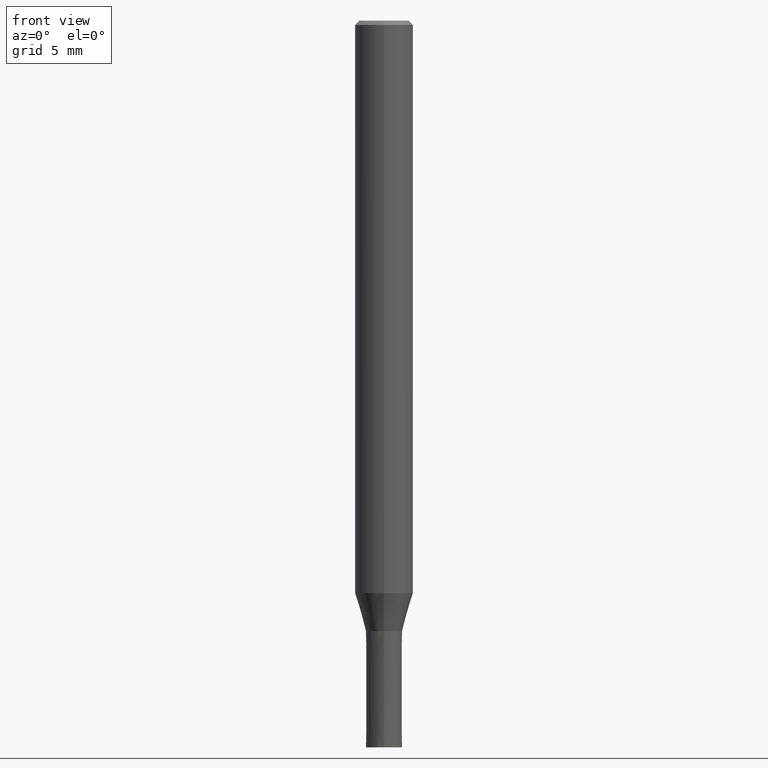
[diagram: clean part render]
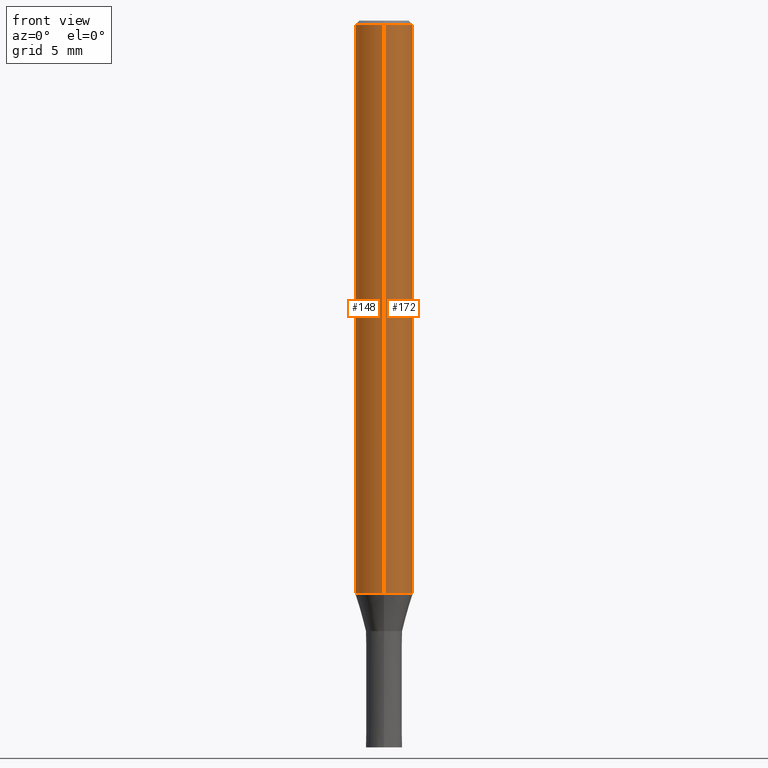
[diagram: same view with one multi-face feature highlighted, each face labeled with its STEP entity id]
A machine part, front view. The highlighted faces form ONE feature: a constant-radius fillet chain: 2 tangent blend faces with common blend radius 2 mm. The faces share edges in the B-rep.
Their STEP definitions:
[1] entity #148 (Cylinder):
#94=VERTEX_POINT('',#215);
#98=VERTEX_POINT('',#219);
#100=EDGE_CURVE('',#134,#94,#221,.T.);
#104=EDGE_CURVE('',#98,#94,#225,.T.);
#134=VERTEX_POINT('',#260);
#140=VERTEX_POINT('',#267);
#148=ADVANCED_FACE('',(#275),#276,.T.);
#154=EDGE_CURVE('',#140,#98,#283,.T.);
#184=EDGE_CURVE('',#134,#140,#319,.T.);
#215=CARTESIAN_POINT('',(0.0,2.0,-39.384));
#219=CARTESIAN_POINT('',(0.0,2.0,-0.299999999999997));
#221=CIRCLE('',#355,2.0);
#225=LINE('',#362,#363);
#260=CARTESIAN_POINT('',(2.44921270764475E-016,-2.0,-39.384));
#267=CARTESIAN_POINT('',(2.44921270764475E-016,-2.0,-0.299999999999997));
#275=FACE_OUTER_BOUND('',#420,.T.);
#276=CYLINDRICAL_SURFACE('',#421,2.0);
#283=CIRCLE('',#431,2.0);
#319=LINE('',#473,#474);
#355=AXIS2_PLACEMENT_3D('',#484,#485,#486);
#362=CARTESIAN_POINT('',(-2.44921270764475E-016,2.0,-19.842));
#363=VECTOR('',#488,1.0);
#420=EDGE_LOOP('',(#548,#549,#550,#551));
#421=AXIS2_PLACEMENT_3D('',#552,#553,#554);
#431=AXIS2_PLACEMENT_3D('',#562,#563,#564);
#473=CARTESIAN_POINT('',(2.44921270764475E-016,-2.0,-19.842));
#474=VECTOR('',#623,1.0);
#484=CARTESIAN_POINT('',(0.0,0.0,-39.384));
#485=DIRECTION('',(0.0,0.0,-1.0));
#486=DIRECTION('',(0.0,1.0,0.0));
#488=DIRECTION('',(0.0,0.0,-1.0));
#548=ORIENTED_EDGE('',*,*,#104,.T.);
#549=ORIENTED_EDGE('',*,*,#100,.F.);
#550=ORIENTED_EDGE('',*,*,#184,.T.);
#551=ORIENTED_EDGE('',*,*,#154,.T.);
#552=CARTESIAN_POINT('',(0.0,0.0,-19.842));
#553=DIRECTION('',(-0.0,-0.0,1.0));
#554=DIRECTION('',(0.0,1.0,0.0));
#562=CARTESIAN_POINT('',(0.0,0.0,-0.299999999999997));
#563=DIRECTION('',(0.0,0.0,-1.0));
#564=DIRECTION('',(0.0,1.0,0.0));
#623=DIRECTION('',(-0.0,-0.0,1.0));
[2] entity #172 (Cylinder):
#94=VERTEX_POINT('',#215);
#96=EDGE_CURVE('',#94,#134,#217,.T.);
#98=VERTEX_POINT('',#219);
#104=EDGE_CURVE('',#98,#94,#225,.T.);
#134=VERTEX_POINT('',#260);
#140=VERTEX_POINT('',#267);
#162=EDGE_CURVE('',#98,#140,#293,.T.);
#172=ADVANCED_FACE('',(#305),#306,.T.);
#184=EDGE_CURVE('',#134,#140,#319,.T.);
#215=CARTESIAN_POINT('',(0.0,2.0,-39.384));
#217=CIRCLE('',#350,2.0);
#219=CARTESIAN_POINT('',(0.0,2.0,-0.299999999999997));
#225=LINE('',#362,#363);
#260=CARTESIAN_POINT('',(2.44921270764475E-016,-2.0,-39.384));
#267=CARTESIAN_POINT('',(2.44921270764475E-016,-2.0,-0.299999999999997));
#293=CIRCLE('',#442,2.0);
#305=FACE_OUTER_BOUND('',#455,.T.);
#306=CYLINDRICAL_SURFACE('',#456,2.0);
#319=LINE('',#473,#474);
#350=AXIS2_PLACEMENT_3D('',#481,#482,#483);
#362=CARTESIAN_POINT('',(-2.44921270764475E-016,2.0,-19.842));
#363=VECTOR('',#488,1.0);
#442=AXIS2_PLACEMENT_3D('',#579,#580,#581);
#455=EDGE_LOOP('',(#602,#603,#604,#605));
#456=AXIS2_PLACEMENT_3D('',#606,#607,#608);
#473=CARTESIAN_POINT('',(2.44921270764475E-016,-2.0,-19.842));
#474=VECTOR('',#623,1.0);
#481=CARTESIAN_POINT('',(0.0,0.0,-39.384));
#482=DIRECTION('',(0.0,0.0,-1.0));
#483=DIRECTION('',(0.0,1.0,0.0));
#488=DIRECTION('',(0.0,0.0,-1.0));
#579=CARTESIAN_POINT('',(0.0,0.0,-0.299999999999997));
#580=DIRECTION('',(0.0,0.0,-1.0));
#581=DIRECTION('',(0.0,1.0,0.0));
#602=ORIENTED_EDGE('',*,*,#104,.F.);
#603=ORIENTED_EDGE('',*,*,#162,.T.);
#604=ORIENTED_EDGE('',*,*,#184,.F.);
#605=ORIENTED_EDGE('',*,*,#96,.F.);
#606=CARTESIAN_POINT('',(0.0,0.0,-19.842));
#607=DIRECTION('',(-0.0,-0.0,1.0));
#608=DIRECTION('',(0.0,1.0,0.0));
#623=DIRECTION('',(-0.0,-0.0,1.0));